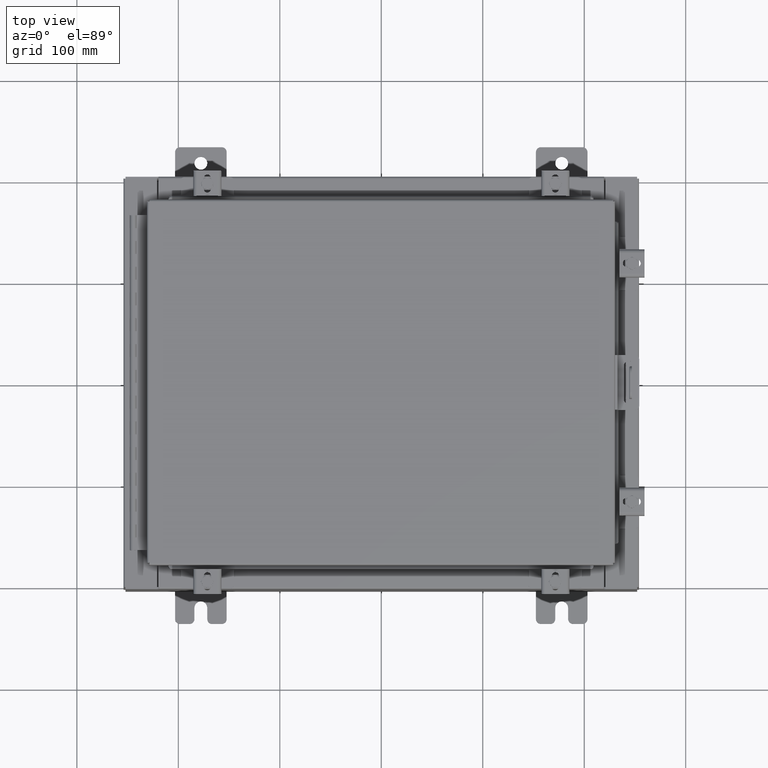
[diagram: clean part render]
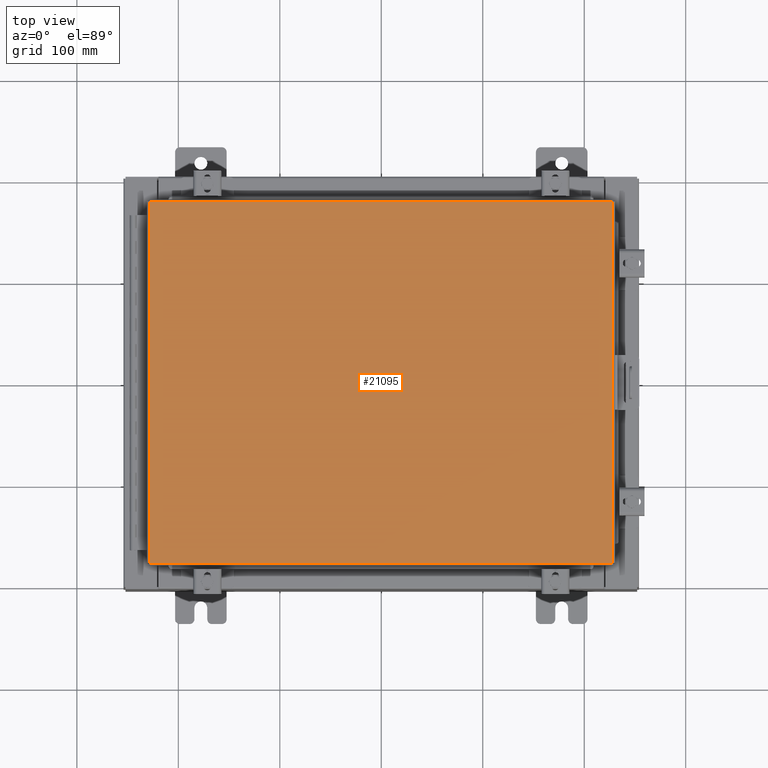
[diagram: same view with one face highlighted and labeled with its STEP entity id]
A machine part, top view. The second image highlights one B-rep face of the part: STEP entity #21095.
In plain terms, the highlighted planar face has unit normal (0, 0, -1).
Its self-contained STEP definition (entity closure, byte-faithful):
#409 = LINE ( 'NONE', #15264, #13912 ) ;
#925 = DIRECTION ( 'NONE',  ( -1.000000000000000000, 0.0000000000000000000, -0.0000000000000000000 ) ) ;
#1107 = VECTOR ( 'NONE', #1687, 39.37007874015748100 ) ;
#1497 = DIRECTION ( 'NONE',  ( -1.000000000000000000, -0.0000000000000000000, -0.0000000000000000000 ) ) ;
#1596 = CARTESIAN_POINT ( 'NONE',  ( 8.990300000000001300, 7.006300000000001300, -2.048885995248197400E-016 ) ) ;
#1671 = EDGE_LOOP ( 'NONE', ( #11233, #22278, #8200, #6163 ) ) ;
#1687 = DIRECTION ( 'NONE',  ( 0.0000000000000000000, -1.000000000000000000, 0.0000000000000000000 ) ) ;
#1700 = CARTESIAN_POINT ( 'NONE',  ( 8.990300000000001300, 7.006300000000001300, -2.048885995248197400E-016 ) ) ;
#1748 = LINE ( 'NONE', #13687, #1107 ) ;
#2396 = CARTESIAN_POINT ( 'NONE',  ( 8.990299999999999500, -7.006299999999998600, -7.512581982576723400E-016 ) ) ;
#2486 = VECTOR ( 'NONE', #1497, 39.37007874015748100 ) ;
#5117 = EDGE_CURVE ( 'NONE', #9173, #26144, #1748, .T. ) ;
#6163 = ORIENTED_EDGE ( 'NONE', *, *, #5117, .T. ) ;
#6501 = CARTESIAN_POINT ( 'NONE',  ( -8.990299999999999500, 7.006300000000001300, -1.843997395723377600E-015 ) ) ;
#6806 = CARTESIAN_POINT ( 'NONE',  ( 0.0000000000000000000, 0.0000000000000000000, 0.0000000000000000000 ) ) ;
#7162 = DIRECTION ( 'NONE',  ( 1.000000000000000000, -0.0000000000000000000, -0.0000000000000000000 ) ) ;
#7164 = EDGE_CURVE ( 'NONE', #26144, #25453, #409, .T. ) ;
#7427 = CARTESIAN_POINT ( 'NONE',  ( 8.990299999999999500, -7.006299999999998600, -7.512581982576723400E-016 ) ) ;
#8200 = ORIENTED_EDGE ( 'NONE', *, *, #12368, .T. ) ;
#8426 = DIRECTION ( 'NONE',  ( 0.0000000000000000000, 1.000000000000000000, 0.0000000000000000000 ) ) ;
#9173 = VERTEX_POINT ( 'NONE', #6501 ) ;
#11233 = ORIENTED_EDGE ( 'NONE', *, *, #7164, .T. ) ;
#12368 = EDGE_CURVE ( 'NONE', #20121, #9173, #18519, .T. ) ;
#12420 = AXIS2_PLACEMENT_3D ( 'NONE', #6806, #12951, #925 ) ;
#12839 = LINE ( 'NONE', #2396, #17561 ) ;
#12951 = DIRECTION ( 'NONE',  ( 0.0000000000000000000, 0.0000000000000000000, -1.000000000000000000 ) ) ;
#13687 = CARTESIAN_POINT ( 'NONE',  ( -8.990299999999999500, 7.006300000000001300, -1.843997395723377600E-015 ) ) ;
#13912 = VECTOR ( 'NONE', #7162, 39.37007874015748100 ) ;
#15264 = CARTESIAN_POINT ( 'NONE',  ( -8.990299999999997700, -7.006299999999998600, -2.048885995248197400E-016 ) ) ;
#15936 = CARTESIAN_POINT ( 'NONE',  ( -8.990299999999997700, -7.006299999999998600, -2.048885995248197400E-016 ) ) ;
#17561 = VECTOR ( 'NONE', #8426, 39.37007874015748100 ) ;
#18519 = LINE ( 'NONE', #1596, #2486 ) ;
#19577 = EDGE_CURVE ( 'NONE', #25453, #20121, #12839, .T. ) ;
#20121 = VERTEX_POINT ( 'NONE', #1700 ) ;
#21095 = ADVANCED_FACE ( 'NONE', ( #22243 ), #23020, .F. ) ;
#22243 = FACE_OUTER_BOUND ( 'NONE', #1671, .T. ) ;
#22278 = ORIENTED_EDGE ( 'NONE', *, *, #19577, .T. ) ;
#23020 = PLANE ( 'NONE',  #12420 ) ;
#25453 = VERTEX_POINT ( 'NONE', #7427 ) ;
#26144 = VERTEX_POINT ( 'NONE', #15936 ) ;